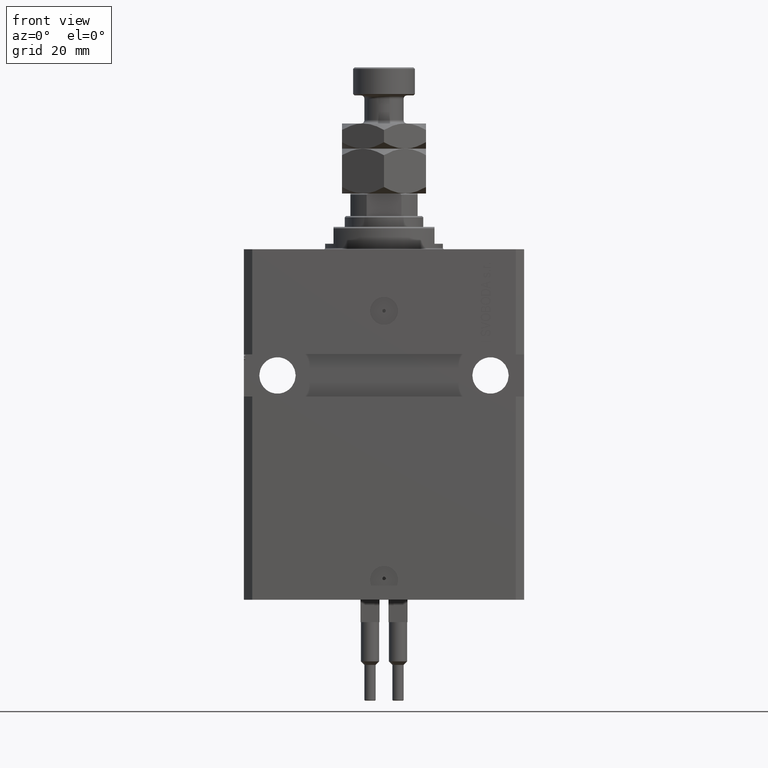
[diagram: clean part render]
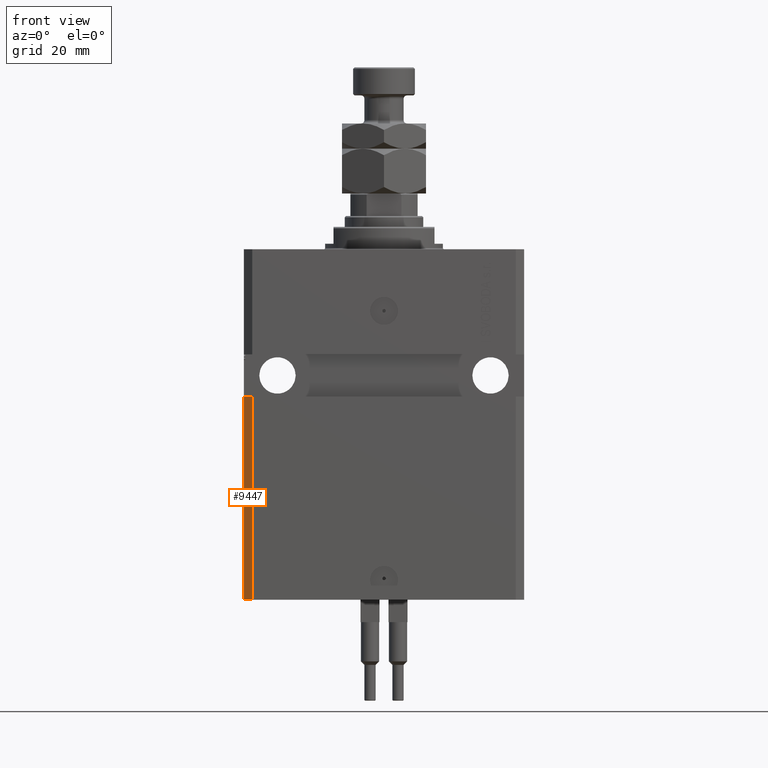
[diagram: same view with one face highlighted and labeled with its STEP entity id]
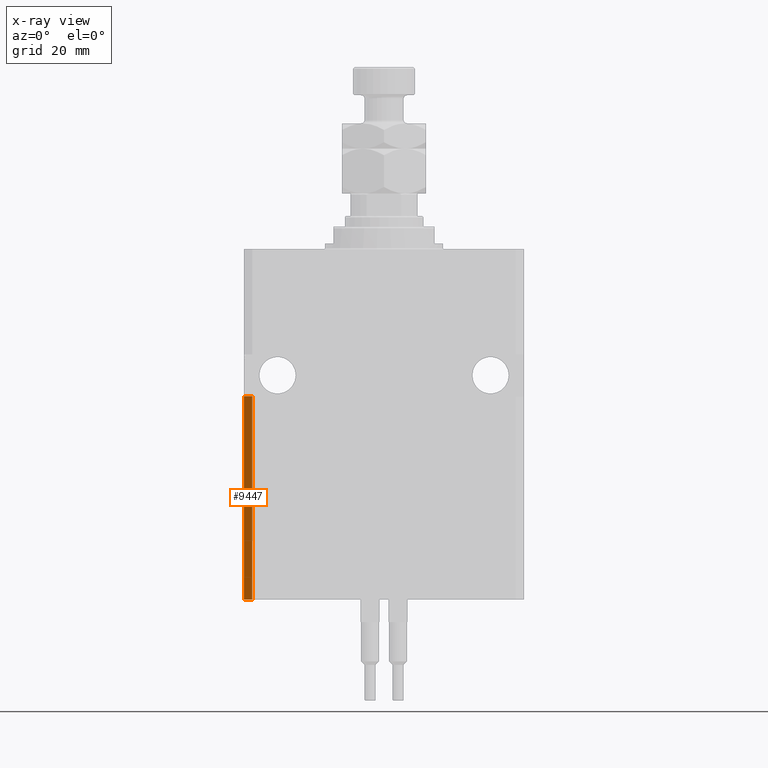
[diagram: x-ray of the same camera — body ghosted, the highlighted face saturated]
A machine part, front view. The second image highlights one B-rep face of the part: STEP entity #9447.
The next image is the same camera in x-ray: the body ghosted, the highlighted face saturated — about 0% of this face is hidden behind the body in this view.
In plain terms, the highlighted planar face has unit normal (-0.7071, -0.7071, 0).
Its self-contained STEP definition (entity closure, byte-faithful):
#624 = LINE ( 'NONE', #31873, #36852 ) ;
#687 = LINE ( 'NONE', #31689, #6133 ) ;
#1176 = VERTEX_POINT ( 'NONE', #40320 ) ;
#1546 = VECTOR ( 'NONE', #16084, 1000.000000000000000 ) ;
#2067 = CARTESIAN_POINT ( 'NONE',  ( -50.00000000000000000, -34.50000000000000000, -125.0000000000000000 ) ) ;
#4140 = VERTEX_POINT ( 'NONE', #24186 ) ;
#6133 = VECTOR ( 'NONE', #12234, 1000.000000000000114 ) ;
#9447 = ADVANCED_FACE ( 'NONE', ( #22049 ), #44854, .T. ) ;
#10226 = AXIS2_PLACEMENT_3D ( 'NONE', #2067, #17708, #44614 ) ;
#12234 = DIRECTION ( 'NONE',  ( 0.7071067811865491270, -0.7071067811865459074, 9.813077866773615438E-17 ) ) ;
#13216 = CARTESIAN_POINT ( 'NONE',  ( -50.00000000000000000, -34.50000000000000000, -125.0000000000000000 ) ) ;
#13879 = ORIENTED_EDGE ( 'NONE', *, *, #28299, .F. ) ;
#16084 = DIRECTION ( 'NONE',  ( 0.000000000000000000, 0.000000000000000000, 1.000000000000000000 ) ) ;
#16854 = EDGE_CURVE ( 'NONE', #1176, #4140, #687, .T. ) ;
#17140 = ORIENTED_EDGE ( 'NONE', *, *, #36718, .T. ) ;
#17706 = CARTESIAN_POINT ( 'NONE',  ( -47.00000000000000000, -37.49999999999999289, -125.0000000000000000 ) ) ;
#17708 = DIRECTION ( 'NONE',  ( -0.7071067811865459074, -0.7071067811865491270, 0.000000000000000000 ) ) ;
#19667 = CARTESIAN_POINT ( 'NONE',  ( -50.00000000000000000, -34.50000000000000000, -125.0000000000000000 ) ) ;
#19921 = VECTOR ( 'NONE', #20919, 1000.000000000000114 ) ;
#20919 = DIRECTION ( 'NONE',  ( 0.7071067811865491270, -0.7071067811865459074, 0.000000000000000000 ) ) ;
#22049 = FACE_OUTER_BOUND ( 'NONE', #32082, .T. ) ;
#23826 = VERTEX_POINT ( 'NONE', #13216 ) ;
#24186 = CARTESIAN_POINT ( 'NONE',  ( -46.99999999999998579, -37.50000000000000711, -52.50000000000000000 ) ) ;
#28299 = EDGE_CURVE ( 'NONE', #23826, #1176, #35020, .T. ) ;
#28343 = LINE ( 'NONE', #49071, #19921 ) ;
#28994 = VERTEX_POINT ( 'NONE', #17706 ) ;
#31689 = CARTESIAN_POINT ( 'NONE',  ( -50.00000000000000711, -34.49999999999999289, -52.49999999999999289 ) ) ;
#31873 = CARTESIAN_POINT ( 'NONE',  ( -47.00000000000000000, -37.49999999999999289, -125.0000000000000000 ) ) ;
#32082 = EDGE_LOOP ( 'NONE', ( #50181, #13879, #17140, #34912 ) ) ;
#34912 = ORIENTED_EDGE ( 'NONE', *, *, #40247, .T. ) ;
#35020 = LINE ( 'NONE', #19667, #1546 ) ;
#36718 = EDGE_CURVE ( 'NONE', #23826, #28994, #28343, .T. ) ;
#36852 = VECTOR ( 'NONE', #47514, 1000.000000000000000 ) ;
#40247 = EDGE_CURVE ( 'NONE', #28994, #4140, #624, .T. ) ;
#40320 = CARTESIAN_POINT ( 'NONE',  ( -50.00000000000001421, -34.50000000000000000, -52.50000000000000000 ) ) ;
#44614 = DIRECTION ( 'NONE',  ( 0.7071067811865491270, -0.7071067811865459074, 0.000000000000000000 ) ) ;
#44854 = PLANE ( 'NONE',  #10226 ) ;
#47514 = DIRECTION ( 'NONE',  ( 0.000000000000000000, 0.000000000000000000, 1.000000000000000000 ) ) ;
#49071 = CARTESIAN_POINT ( 'NONE',  ( -50.00000000000000000, -34.50000000000000000, -125.0000000000000000 ) ) ;
#50181 = ORIENTED_EDGE ( 'NONE', *, *, #16854, .F. ) ;